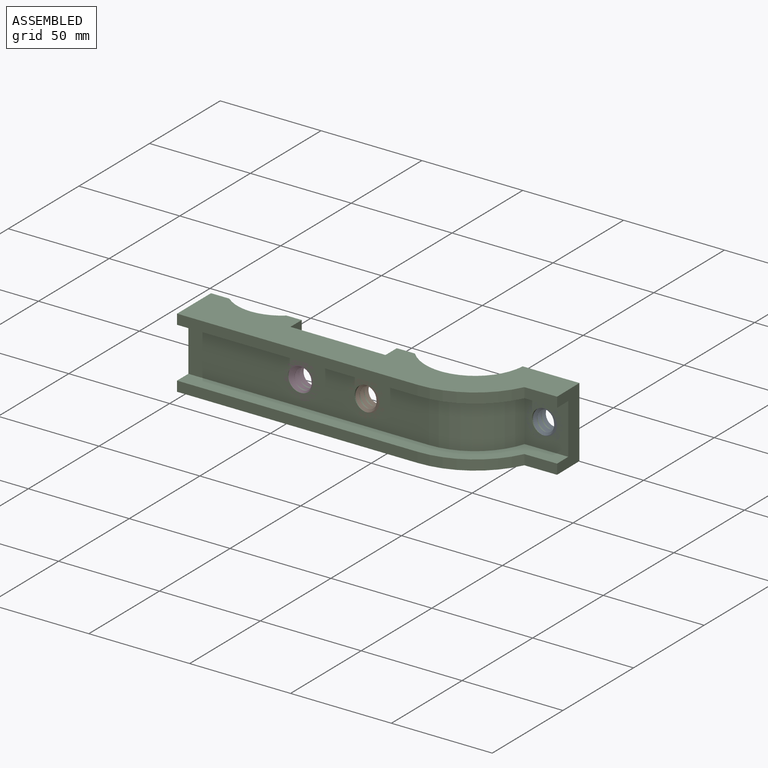
[diagram: assembled view]
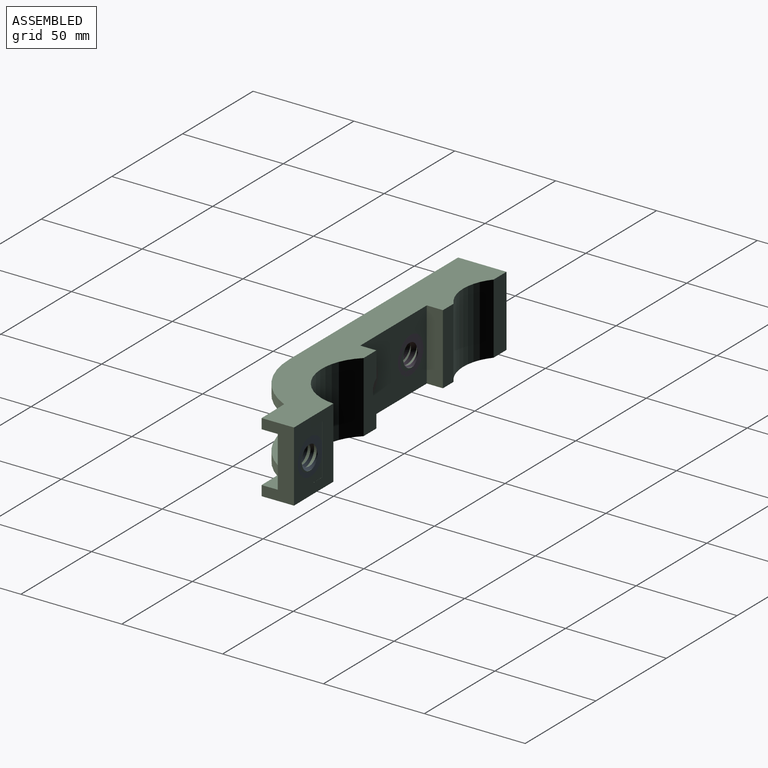
[diagram: assembled view, second angle]
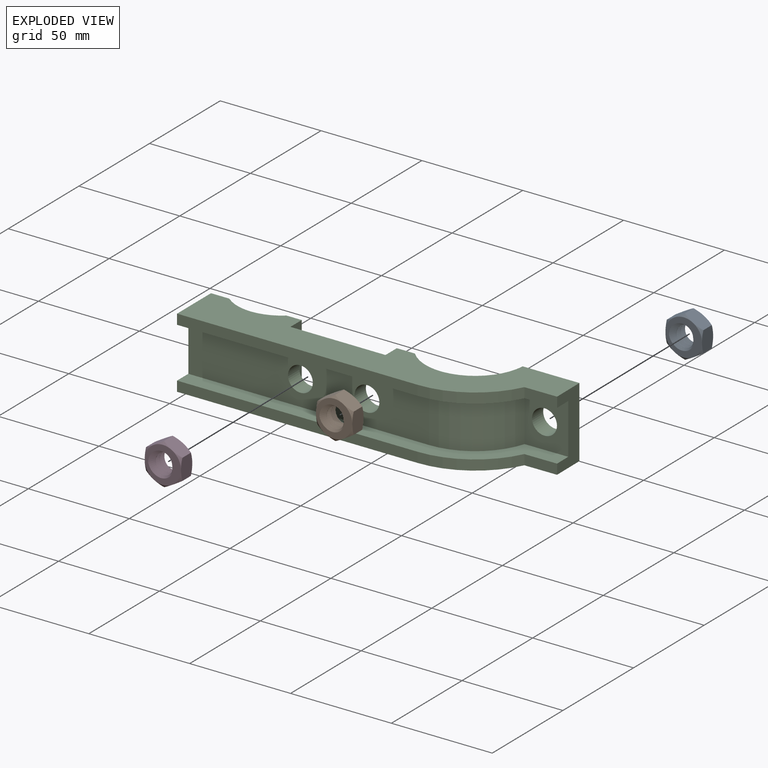
[diagram: exploded view]
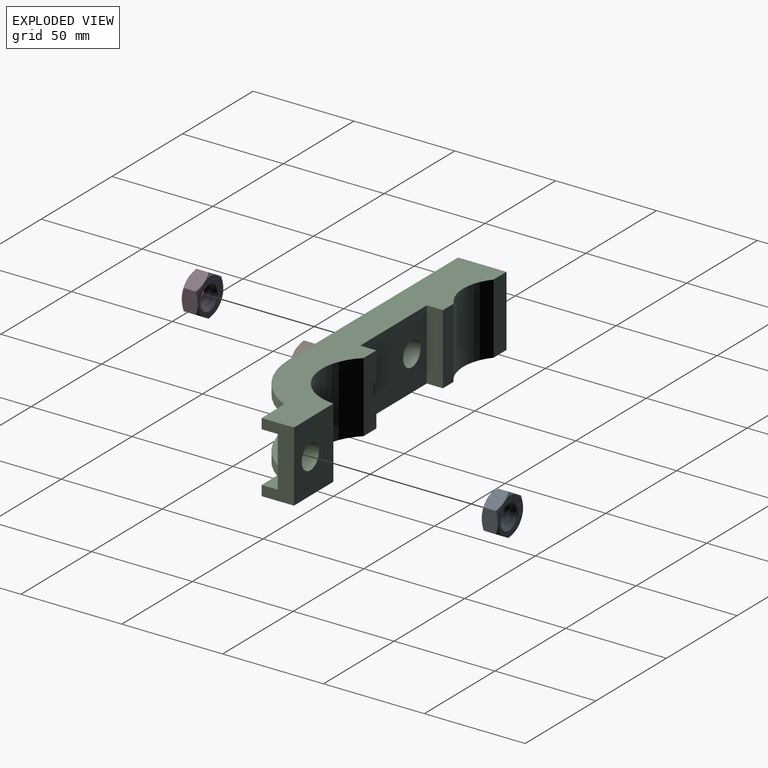
[diagram: exploded view, second angle]
ASSEMBLY  parts=4 mates=3
PART A: 23 faces, bbox 22.8x22.8x13.9 mm
  f0: cylinder r=4.75mm len=9.5mm, axis (0,0,-1), area 7.5mm2, adj f1,f2,f21,f22
  f1: plane 20.02x20.02mm, normal (0,0,1), area 139.2mm2, adj f0,f5,f6,f8,f10,f12,f14,f21
  f2: plane 20.06x20.06mm, normal (0,0,-1), area 139.2mm2, adj f0,f3,f4,f7,f9,f11,f13,f21
  f3: cone r=14.27mm half-angle=55deg, axis (0,0,1), area 8.4mm2, adj f2,f15,f20
  f4: cone r=14.27mm half-angle=55deg, axis (0,0,1), area 8.4mm2, adj f2,f15,f16
  f5: cone r=14.27mm half-angle=55deg, axis (0,0,-1), area 8.4mm2, adj f1,f15,f20
  f6: cone r=14.27mm half-angle=55deg, axis (0,0,-1), area 8.4mm2, adj f1,f15,f16
  f7: cone r=14.27mm half-angle=55deg, axis (0,0,1), area 8.4mm2, adj f2,f16,f17
  f8: cone r=14.27mm half-angle=55deg, axis (0,0,-1), area 8.4mm2, adj f1,f16,f17
  f9: cone r=14.27mm half-angle=55deg, axis (0,0,1), area 8.4mm2, adj f2,f17,f18
  f10: cone r=14.27mm half-angle=55deg, axis (0,0,-1), area 8.4mm2, adj f1,f17,f18
  f11: cone r=14.27mm half-angle=55deg, axis (0,0,1), area 8.4mm2, adj f2,f18,f19
  f12: cone r=14.27mm half-angle=55deg, axis (0,0,-1), area 8.4mm2, adj f1,f18,f19
  f13: cone r=14.27mm half-angle=55deg, axis (0,0,1), area 8.4mm2, adj f2,f19,f20
  f14: cone r=14.27mm half-angle=55deg, axis (0,0,-1), area 8.4mm2, adj f1,f19,f20
  f15: plane 11.29x8.9mm, normal (-1,0,0), area 76.2mm2, adj f3,f4,f5,f6,f16,f20
  f16: plane 9.9x8.91mm, normal (-0.5,0.87,0), area 76.2mm2, adj f4,f6,f7,f8,f15,f17
  f17: plane 9.9x8.91mm, normal (0.5,0.87,0), area 76.2mm2, adj f7,f8,f9,f10,f16,f18
  f18: plane 11.29x8.9mm, normal (1,0,0), area 76.2mm2, adj f9,f10,f11,f12,f17,f19
  f19: plane 9.9x8.91mm, normal (0.5,-0.87,0), area 76.2mm2, adj f11,f12,f13,f14,f18,f20
  f20: plane 9.9x8.91mm, normal (-0.5,-0.87,0), area 76.2mm2, adj f3,f5,f13,f14,f15,f19
  f21: bspline ~16.97x14.7mm, area 295.4mm2, adj f0,f1,f2,f22
  f22: bspline ~16.97x14.7mm, area 295.2mm2, adj f0,f1,f2,f21
PART B: same geometry as A
PART C: 32 faces, bbox 172.2x39.2x35 mm
  f0: cylinder r=40.74mm len=36.69mm, axis (0,0,1), area 228.3mm2, adj f5,f8,f22,f31
  f1: plane 25x21.52mm, normal (0.01,-1,0), area 419.1mm2, adj f3,f4,f5,f28,f29
  f2: cylinder r=40.74mm len=36.69mm, axis (0,0,1), area 228.3mm2, adj f4,f19,f20,f30
  f3: cylinder r=32.74mm len=31.25mm, axis (0,0,1), area 1038mm2, adj f1,f4,f5,f17
  f4: plane 172.18x31.15mm, normal (0,0,-1), area 1453.8mm2, adj f1,f2,f3,f16,f17,f20,f28,f30
  f5: plane 172.18x31.15mm, normal (0,0,1), area 1453.8mm2, adj f0,f1,f3,f16,f17,f22,f28,f31
  f6: plane 12.5x8mm, normal (-1,0,0), area 100mm2, adj f8,f9,f11,f25
  f7: cylinder r=24.74mm len=42.9mm, axis (0,0,1), area 2017.8mm2, adj f8,f9,f19,f24
  f8: plane 172.18x39.15mm, normal (0,0,-1), area 3298.4mm2, adj f0,f6,f7,f9,f11,f12,f13,f14
  f9: plane 35x9mm, normal (0,1,0), area 297mm2, adj f6,f7,f8,f10,f19,f25
  f10: plane 12.5x8mm, normal (-1,0,0), area 100mm2, adj f9,f11,f19,f25
  f11: plane 47.13x35mm, normal (0,1,0), area 1429.9mm2, adj f6,f8,f10,f12,f19,f25,f26
  f12: plane 35x8mm, normal (1,0,0), area 280mm2, adj f8,f11,f13,f19
  f13: plane 35x7.53mm, normal (0,1,0), area 263.4mm2, adj f8,f12,f14,f19
  f14: cylinder r=22.2mm len=35mm, axis (0,0,1), area 1078.6mm2, adj f8,f13,f15,f19
  f15: plane 35x9.07mm, normal (0,1,0), area 317.5mm2, adj f8,f14,f16,f19
  f16: plane 35x24mm, normal (-1,0,0), area 640mm2, adj f4,f5,f8,f15,f17,f19,f20,f22
  f17: plane 119.35x25mm, normal (0,-1,0), area 2746.1mm2, adj f3,f4,f5,f16,f25,f26
  f18: cylinder r=32.74mm len=25mm, axis (0,0,1), area 1.6mm2, adj f21,f23,f24,f27
  f19: plane 172.18x39.15mm, normal (0,0,1), area 3298.4mm2, adj f2,f7,f9,f10,f11,f12,f13,f14
  f20: plane 119.35x5mm, normal (0,-1,0), area 596.7mm2, adj f2,f4,f16,f19
  f21: plane 8.01x0.06mm, normal (0,0,-1), area 0.3mm2, adj f18,f24,f27
  f22: plane 119.35x5mm, normal (0,-1,0), area 596.7mm2, adj f0,f5,f8,f16
  f23: plane 8.01x0.06mm, normal (0,0,1), area 0.3mm2, adj f18,f24,f27
  f24: plane 35x16.02mm, normal (0,1,0), area 360.6mm2, adj f7,f8,f18,f19,f21,f23,f27
  f25: cylinder r=6.15mm len=16mm, axis (0,-1,0), area 402.5mm2, adj f6,f9,f10,f11,f17
  f26: cylinder r=6.15mm len=12.3mm, axis (0,-1,0), area 309.1mm2, adj f11,f17
  f27: plane 35x20.01mm, normal (-0.01,1,0), area 501.5mm2, adj f8,f18,f19,f21,f23,f24,f28,f29
  f28: plane 35x16mm, normal (1,0.01,0), area 360mm2, adj f1,f4,f5,f8,f19,f27,f30,f31
  f29: cylinder r=6.15mm len=12.36mm, axis (0.01,-1,0), area 309.1mm2, adj f1,f27
  f30: plane 16.14x5mm, normal (0.01,-1,0), area 80.7mm2, adj f2,f4,f19,f28
  f31: plane 16.14x5mm, normal (0.01,-1,0), area 80.7mm2, adj f0,f5,f8,f28
PART D: same geometry as A
PLACE A rot(axis=(1,0,0),90deg) t=(-140.31,45.28,-78.64)mm
PLACE B rot(axis=(1,0,0),90deg) t=(-212.1,22.22,-78.64)mm
PLACE C t=(-63.86,47.28,-131.14)mm
PLACE D rot(axis=(1,0,0),90deg) t=(-244.28,22.22,-78.99)mm
MATE fastened C.f29 <-> A.f3  axis (-0.01,1,0) through (-140.31,45.28,-78.64)mm
MATE fastened C.f26 <-> D.f2  axis (0,1,0) through (-245.1,22.22,-78.64)mm
MATE fastened C.f25 <-> B.f3  axis (0,1,0) through (-212.1,22.22,-78.64)mm
